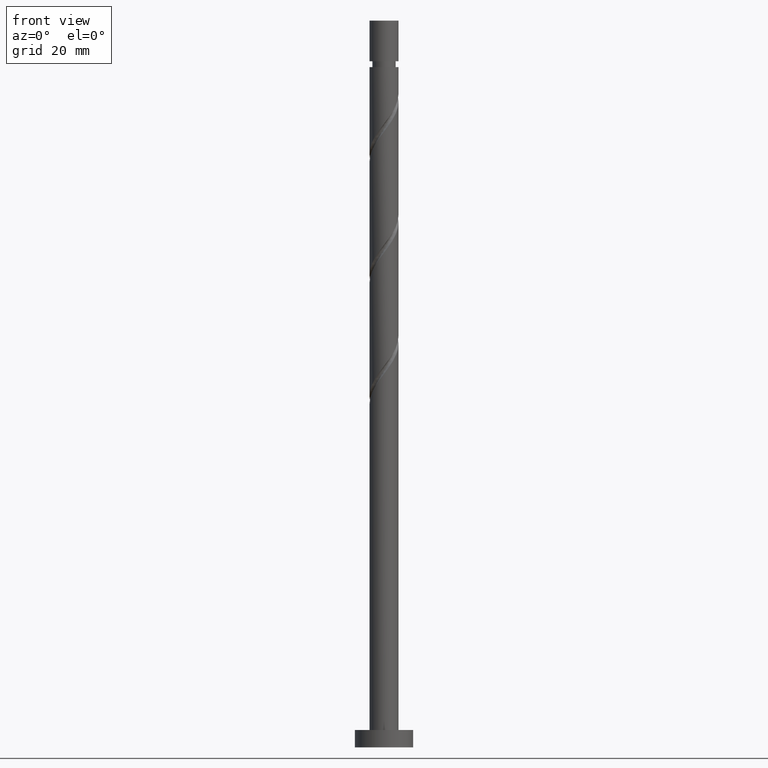
[diagram: clean part render]
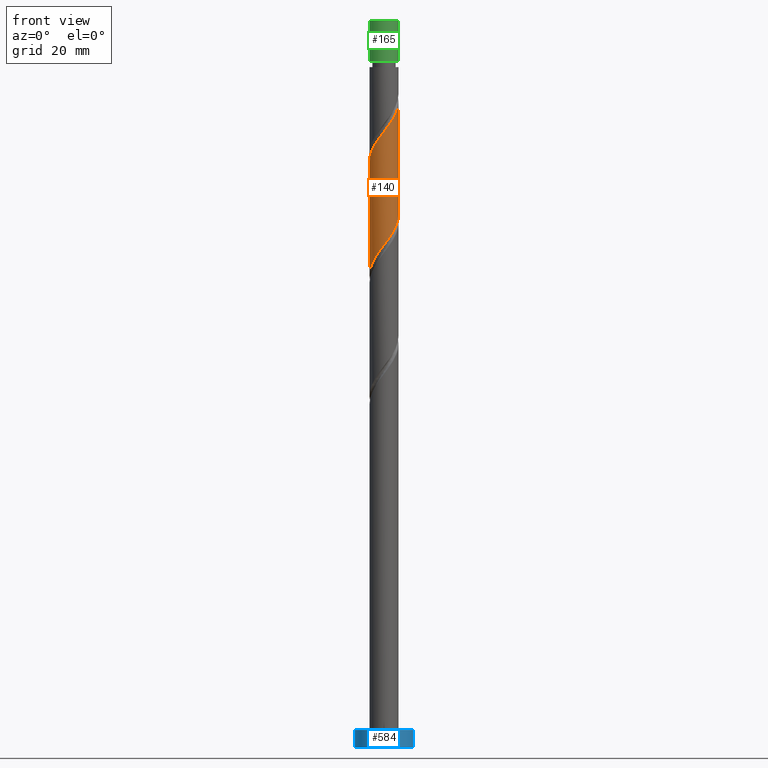
[diagram: same view with three faces highlighted in distinct colors, each labeled with its STEP entity id]
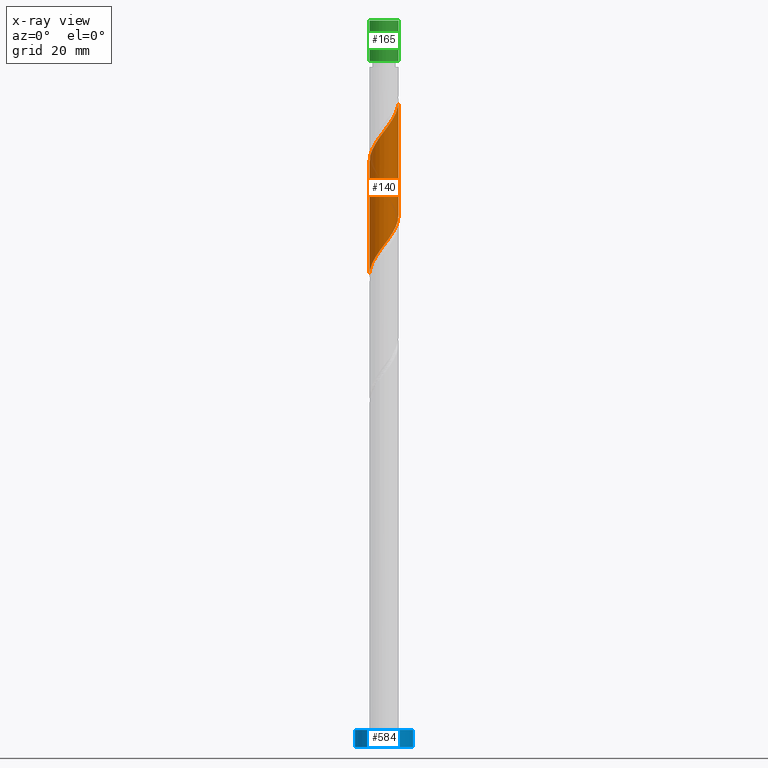
[diagram: x-ray of the same camera — body ghosted, the three highlighted faces saturated]
A machine part, front view with three faces highlighted in distinct colors.
The next image is the same camera in x-ray (body ghosted, the three faces saturated) — at least one of them is partly hidden behind the body in this view.
Their STEP definitions:

[orange] entity #140 — the highlighted cylindrical surface (edge-blend (fillet) strip) has radius 2.5 mm, axis along (-0, -0, -1).
#7 = CARTESIAN_POINT ( 'NONE',  ( 0.8855355973484244636, -2.371204735821965226, 107.1008576505491590 ) ) ;
#14 = CARTESIAN_POINT ( 'NONE',  ( -1.037592995212145874, -2.274511107092401563, 104.4966909838824876 ) ) ;
#101 = CARTESIAN_POINT ( 'NONE',  ( 0.000000000000000000, 0.000000000000000000, 125.0000000000000000 ) ) ;
#105 = CARTESIAN_POINT ( 'NONE',  ( -0.1094518397581966396, -2.528795264178038238, 86.26752431721583037 ) ) ;
#134 = CARTESIAN_POINT ( 'NONE',  ( -2.371204735821965226, -0.8855355973484246856, 101.8925243172158162 ) ) ;
#140 = ADVANCED_FACE ( 'NONE', ( #841 ), #847, .T. ) ;
#141 = CARTESIAN_POINT ( 'NONE',  ( -0.6773458265033743819, -2.438849692923736434, 105.0175243172158446 ) ) ;
#147 = CARTESIAN_POINT ( 'NONE',  ( -2.500000000000000000, 0.000000000000000000, 125.0000000000000000 ) ) ;
#150 = CARTESIAN_POINT ( 'NONE',  ( -2.450000000000002842, -0.4974937185533103712, 101.3716909838824876 ) ) ;
#157 = CARTESIAN_POINT ( 'NONE',  ( 2.274511107092401563, -1.037592995212145874, 109.7050243172158304 ) ) ;
#166 = CARTESIAN_POINT ( 'NONE',  ( 2.500000000000000444, 3.643323976319009630E-15, 91.61982675868610215 ) ) ;
#199 = CARTESIAN_POINT ( 'NONE',  ( -1.230236279064654381, -2.176354451295366754, 84.70502431721587300 ) ) ;
#207 = CARTESIAN_POINT ( 'NONE',  ( -2.500000000000000444, 3.103572276123601059E-15, 81.20316009201944496 ) ) ;
#219 = VERTEX_POINT ( 'NONE', #265 ) ;
#247 = CARTESIAN_POINT ( 'NONE',  ( -2.500000000000003109, -0.2512594538148010814, 101.0411931178200717 ) ) ;
#265 = CARTESIAN_POINT ( 'NONE',  ( -2.500000000000002665, -1.229434428222869666E-15, 100.7068885424122300 ) ) ;
#300 = CARTESIAN_POINT ( 'NONE',  ( -1.574936960780884521, -1.981504166768771835, 84.18419098388251598 ) ) ;
#320 = VERTEX_POINT ( 'NONE', #1275 ) ;
#368 = CARTESIAN_POINT ( 'NONE',  ( 0.4974937185533101491, -2.450000000000002842, 106.5800243172158304 ) ) ;
#376 = CARTESIAN_POINT ( 'NONE',  ( -2.176354451295369419, -1.230236279064655269, 102.4133576505491874 ) ) ;
#391 = CARTESIAN_POINT ( 'NONE',  ( -1.981504166768773390, -1.574936960780885409, 102.9341909838825160 ) ) ;
#397 = LINE ( 'NONE', #147, #1518 ) ;
#418 = EDGE_CURVE ( 'NONE', #320, #550, #871, .T. ) ;
#433 = CARTESIAN_POINT ( 'NONE',  ( -2.483822478550886892, -0.2839469933725882189, 81.58002431721584458 ) ) ;
#449 = CARTESIAN_POINT ( 'NONE',  ( 2.500000000000000000, 3.061616997868382648E-16, 125.0000000000000000 ) ) ;
#465 = CARTESIAN_POINT ( 'NONE',  ( 1.037592995212144320, -2.274511107092399342, 87.83002431721584458 ) ) ;
#491 = EDGE_CURVE ( 'NONE', #1514, #320, #679, .T. ) ;
#496 = CARTESIAN_POINT ( 'NONE',  ( 1.230236279064655269, -2.176354451295369419, 107.6216909838825160 ) ) ;
#504 = CARTESIAN_POINT ( 'NONE',  ( -1.689672165344845434, -1.842554741020975939, 103.4550243172158304 ) ) ;
#526 =( BOUNDED_CURVE ( )  B_SPLINE_CURVE ( 2, ( #874, #247, #150, #134, #376, #391, #504, #1105, #14, #141, #1464, #1338, #368, #7, #496, #1114, #866, #858, #157, #1493, #1097, #1486, #1479 ),
 .UNSPECIFIED., .F., .T. ) 
 B_SPLINE_CURVE_WITH_KNOTS ( ( 3, 2, 2, 2, 2, 2, 2, 2, 2, 2, 2, 3 ),
 ( 0.5545322023138551382, 0.5625000000000000000, 0.5749999999999999556, 0.5875000000000000222, 0.5999999999999999778, 0.6125000000000000444, 0.6250000000000000000, 0.6374999999999999556, 0.6500000000000000222, 0.6624999999999999778, 0.6750000000000000444, 0.6795322023138555823 ),
 .UNSPECIFIED. ) 
 CURVE ( )  GEOMETRIC_REPRESENTATION_ITEM ( )  RATIONAL_B_SPLINE_CURVE ( ( 0.9039174447099396215, 0.9019565955404689195, 0.9090909090909173873, 0.8978984914501335624, 0.9090909090909173873, 0.8978984914501335624, 0.9090909090909173873, 0.8978984914501335624, 0.9090909090909173873, 0.8978984914501335624, 0.9090909090909173873, 0.8978984914501335624, 0.9090909090909173873, 0.8978984914501335624, 0.9090909090909173873, 0.8978984914501335624, 0.9090909090909173873, 0.8978984914501335624, 0.9090909090909173873, 0.8978984914501335624, 0.9090909090909173873, 0.9050328050005814751, 0.9039174447099395104 ) ) 
 REPRESENTATION_ITEM ( '' )  );
#528 = CARTESIAN_POINT ( 'NONE',  ( 2.371204735821961673, -0.8855355973484245746, 90.43419098388251598 ) ) ;
#537 = CARTESIAN_POINT ( 'NONE',  ( 1.397840163920915035, -2.110172521261064915, 88.35085765054918738 ) ) ;
#550 = VERTEX_POINT ( 'NONE', #207 ) ;
#557 = EDGE_LOOP ( 'NONE', ( #1491, #1382, #1260, #1539 ) ) ;
#585 = CARTESIAN_POINT ( 'NONE',  ( 0.6773458265033729386, -2.438849692923733770, 87.30919098388250177 ) ) ;
#600 = AXIS2_PLACEMENT_3D ( 'NONE', #101, #1334, #942 ) ;
#652 = CARTESIAN_POINT ( 'NONE',  ( 2.500000000000000888, -0.2512594538148015810, 91.28552218327823198 ) ) ;
#663 = CARTESIAN_POINT ( 'NONE',  ( -2.499999999999999112, -0.1424343436160874776, 81.39267118122673139 ) ) ;
#679 = LINE ( 'NONE', #449, #1029 ) ;
#686 = CARTESIAN_POINT ( 'NONE',  ( -2.500000000000000444, 3.103572276123601059E-15, 81.20316009201944496 ) ) ;
#820 = CARTESIAN_POINT ( 'NONE',  ( -2.110172521261064915, -1.397840163920915035, 83.14252431721584458 ) ) ;
#825 = EDGE_CURVE ( 'NONE', #219, #1514, #526, .T. ) ;
#841 = FACE_OUTER_BOUND ( 'NONE', #557, .T. ) ;
#847 = CYLINDRICAL_SURFACE ( 'NONE', #600, 2.500000000000000000 ) ;
#858 = CARTESIAN_POINT ( 'NONE',  ( 2.110172521261065803, -1.397840163920917478, 109.1841909838824876 ) ) ;
#866 = CARTESIAN_POINT ( 'NONE',  ( 1.842554741020975939, -1.689672165344845434, 108.6633576505491590 ) ) ;
#871 =( BOUNDED_CURVE ( )  B_SPLINE_CURVE ( 2, ( #166, #652, #1138, #528, #1501, #900, #1146, #537, #465, #585, #954, #105, #1561, #1073, #199, #300, #1526, #820, #1298, #912, #433, #663, #686 ),
 .UNSPECIFIED., .F., .T. ) 
 B_SPLINE_CURVE_WITH_KNOTS ( ( 3, 2, 2, 2, 2, 2, 2, 2, 2, 2, 2, 3 ),
 ( 0.5545322023138551382, 0.5625000000000000000, 0.5749999999999999556, 0.5875000000000000222, 0.5999999999999999778, 0.6125000000000000444, 0.6250000000000000000, 0.6374999999999999556, 0.6500000000000000222, 0.6624999999999999778, 0.6750000000000000444, 0.6795322023138550271 ),
 .UNSPECIFIED. ) 
 CURVE ( )  GEOMETRIC_REPRESENTATION_ITEM ( )  RATIONAL_B_SPLINE_CURVE ( ( 0.9039174447099351806, 0.9019565955404644786, 0.9090909090909129464, 0.8978984914501291215, 0.9090909090909129464, 0.8978984914501291215, 0.9090909090909129464, 0.8978984914501291215, 0.9090909090909129464, 0.8978984914501291215, 0.9090909090909129464, 0.8978984914501291215, 0.9090909090909129464, 0.8978984914501291215, 0.9090909090909129464, 0.8978984914501291215, 0.9090909090909129464, 0.8978984914501291215, 0.9090909090909129464, 0.8978984914501291215, 0.9090909090909129464, 0.9050328050005775893, 0.9039174447099354026 ) ) 
 REPRESENTATION_ITEM ( '' )  );
#874 = CARTESIAN_POINT ( 'NONE',  ( -2.500000000000003109, -1.229434428222869666E-15, 100.7068885424122300 ) ) ;
#900 = CARTESIAN_POINT ( 'NONE',  ( 1.981504166768771835, -1.574936960780884521, 89.39252431721583037 ) ) ;
#912 = CARTESIAN_POINT ( 'NONE',  ( -2.438849692923733770, -0.6773458265033730497, 82.10085765054917317 ) ) ;
#942 = DIRECTION ( 'NONE',  ( -1.000000000000000000, 0.000000000000000000, 0.000000000000000000 ) ) ;
#954 = CARTESIAN_POINT ( 'NONE',  ( 0.2839469933725881079, -2.483822478550886892, 86.78835765054918738 ) ) ;
#988 = DIRECTION ( 'NONE',  ( -0.000000000000000000, -0.000000000000000000, -1.000000000000000000 ) ) ;
#1029 = VECTOR ( 'NONE', #1535, 1000.000000000000000 ) ;
#1073 = CARTESIAN_POINT ( 'NONE',  ( -0.8855355973484244636, -2.371204735821961673, 85.22585765054918738 ) ) ;
#1097 = CARTESIAN_POINT ( 'NONE',  ( 2.483822478550889112, -0.2839469933725892181, 110.7466909838825018 ) ) ;
#1105 = CARTESIAN_POINT ( 'NONE',  ( -1.397840163920917034, -2.110172521261065803, 103.9758576505491590 ) ) ;
#1114 = CARTESIAN_POINT ( 'NONE',  ( 1.574936960780884743, -1.981504166768773390, 108.1425243172158304 ) ) ;
#1138 = CARTESIAN_POINT ( 'NONE',  ( 2.450000000000001066, -0.4974937185533107042, 90.95502431721584458 ) ) ;
#1146 = CARTESIAN_POINT ( 'NONE',  ( 1.689672165344843435, -1.842554741020975051, 88.87169098388253019 ) ) ;
#1260 = ORIENTED_EDGE ( 'NONE', *, *, #1556, .T. ) ;
#1275 = CARTESIAN_POINT ( 'NONE',  ( 2.500000000000000444, 3.643323976319009630E-15, 91.61982675868610215 ) ) ;
#1298 = CARTESIAN_POINT ( 'NONE',  ( -2.274511107092399342, -1.037592995212144320, 82.62169098388250177 ) ) ;
#1334 = DIRECTION ( 'NONE',  ( -0.000000000000000000, -0.000000000000000000, -1.000000000000000000 ) ) ;
#1338 = CARTESIAN_POINT ( 'NONE',  ( 0.1094518397581957375, -2.528795264178041347, 106.0591909838824733 ) ) ;
#1373 = CARTESIAN_POINT ( 'NONE',  ( 2.500000000000002665, 9.145792697755492489E-16, 111.1235552090789298 ) ) ;
#1382 = ORIENTED_EDGE ( 'NONE', *, *, #825, .F. ) ;
#1464 = CARTESIAN_POINT ( 'NONE',  ( -0.2839469933725891626, -2.483822478550889112, 105.5383576505491590 ) ) ;
#1479 = CARTESIAN_POINT ( 'NONE',  ( 2.500000000000002665, 9.145792697755492489E-16, 111.1235552090789156 ) ) ;
#1486 = CARTESIAN_POINT ( 'NONE',  ( 2.500000000000004885, -0.1424343436160710186, 110.9340441198716434 ) ) ;
#1491 = ORIENTED_EDGE ( 'NONE', *, *, #491, .F. ) ;
#1493 = CARTESIAN_POINT ( 'NONE',  ( 2.438849692923736434, -0.6773458265033743819, 110.2258576505491732 ) ) ;
#1501 = CARTESIAN_POINT ( 'NONE',  ( 2.176354451295366754, -1.230236279064654825, 89.91335765054920159 ) ) ;
#1514 = VERTEX_POINT ( 'NONE', #1373 ) ;
#1518 = VECTOR ( 'NONE', #988, 1000.000000000000000 ) ;
#1526 = CARTESIAN_POINT ( 'NONE',  ( -1.842554741020975051, -1.689672165344843435, 83.66335765054918738 ) ) ;
#1535 = DIRECTION ( 'NONE',  ( -0.000000000000000000, -0.000000000000000000, -1.000000000000000000 ) ) ;
#1539 = ORIENTED_EDGE ( 'NONE', *, *, #418, .F. ) ;
#1556 = EDGE_CURVE ( 'NONE', #219, #550, #397, .T. ) ;
#1561 = CARTESIAN_POINT ( 'NONE',  ( -0.4974937185533105377, -2.450000000000001066, 85.74669098388250177 ) ) ;

[blue] entity #584 — the highlighted cylindrical surface (edge-blend (fillet) strip) has radius 5 mm, axis along (-0, -0, -1).
#17 = CIRCLE ( 'NONE', #1162, 5.000000000000000000 ) ;
#55 = FACE_OUTER_BOUND ( 'NONE', #1405, .T. ) ;
#63 = DIRECTION ( 'NONE',  ( -1.000000000000000000, 0.000000000000000000, 0.000000000000000000 ) ) ;
#68 = ORIENTED_EDGE ( 'NONE', *, *, #334, .F. ) ;
#74 = EDGE_CURVE ( 'NONE', #1295, #1245, #211, .T. ) ;
#108 = DIRECTION ( 'NONE',  ( -0.000000000000000000, -0.000000000000000000, -1.000000000000000000 ) ) ;
#181 = DIRECTION ( 'NONE',  ( -0.000000000000000000, -0.000000000000000000, -1.000000000000000000 ) ) ;
#211 = LINE ( 'NONE', #572, #932 ) ;
#334 = EDGE_CURVE ( 'NONE', #1484, #517, #1065, .T. ) ;
#382 = ORIENTED_EDGE ( 'NONE', *, *, #74, .T. ) ;
#402 = CARTESIAN_POINT ( 'NONE',  ( 5.000000000000000000, 6.123233995736766282E-16, 3.000000000000000000 ) ) ;
#415 = CARTESIAN_POINT ( 'NONE',  ( 0.000000000000000000, 0.000000000000000000, 3.000000000000000000 ) ) ;
#419 = VECTOR ( 'NONE', #830, 1000.000000000000000 ) ;
#517 = VERTEX_POINT ( 'NONE', #921 ) ;
#520 = EDGE_CURVE ( 'NONE', #1245, #517, #701, .T. ) ;
#572 = CARTESIAN_POINT ( 'NONE',  ( -5.000000000000000000, 0.000000000000000000, 3.000000000000000000 ) ) ;
#584 = ADVANCED_FACE ( 'NONE', ( #55 ), #1507, .T. ) ;
#645 = DIRECTION ( 'NONE',  ( 1.000000000000000000, 0.000000000000000000, 0.000000000000000000 ) ) ;
#701 = CIRCLE ( 'NONE', #1319, 5.000000000000000000 ) ;
#830 = DIRECTION ( 'NONE',  ( -0.000000000000000000, -0.000000000000000000, -1.000000000000000000 ) ) ;
#854 = CARTESIAN_POINT ( 'NONE',  ( -5.000000000000000000, 0.000000000000000000, 0.000000000000000000 ) ) ;
#862 = CARTESIAN_POINT ( 'NONE',  ( -5.000000000000000000, 0.000000000000000000, 3.000000000000000000 ) ) ;
#921 = CARTESIAN_POINT ( 'NONE',  ( 5.000000000000000000, 6.123233995736766282E-16, 0.000000000000000000 ) ) ;
#932 = VECTOR ( 'NONE', #108, 1000.000000000000000 ) ;
#935 = ORIENTED_EDGE ( 'NONE', *, *, #1348, .F. ) ;
#1039 = CARTESIAN_POINT ( 'NONE',  ( 0.000000000000000000, 0.000000000000000000, 0.000000000000000000 ) ) ;
#1065 = LINE ( 'NONE', #402, #419 ) ;
#1162 = AXIS2_PLACEMENT_3D ( 'NONE', #1372, #1243, #645 ) ;
#1243 = DIRECTION ( 'NONE',  ( 0.000000000000000000, 0.000000000000000000, 1.000000000000000000 ) ) ;
#1245 = VERTEX_POINT ( 'NONE', #854 ) ;
#1252 = CARTESIAN_POINT ( 'NONE',  ( 5.000000000000000000, 6.123233995736766282E-16, 3.000000000000000000 ) ) ;
#1278 = ORIENTED_EDGE ( 'NONE', *, *, #520, .T. ) ;
#1295 = VERTEX_POINT ( 'NONE', #862 ) ;
#1306 = DIRECTION ( 'NONE',  ( 0.000000000000000000, 0.000000000000000000, 1.000000000000000000 ) ) ;
#1319 = AXIS2_PLACEMENT_3D ( 'NONE', #1039, #1306, #1400 ) ;
#1348 = EDGE_CURVE ( 'NONE', #1295, #1484, #17, .T. ) ;
#1372 = CARTESIAN_POINT ( 'NONE',  ( 0.000000000000000000, 0.000000000000000000, 3.000000000000000000 ) ) ;
#1400 = DIRECTION ( 'NONE',  ( 1.000000000000000000, 0.000000000000000000, 0.000000000000000000 ) ) ;
#1405 = EDGE_LOOP ( 'NONE', ( #68, #935, #382, #1278 ) ) ;
#1443 = AXIS2_PLACEMENT_3D ( 'NONE', #415, #181, #63 ) ;
#1484 = VERTEX_POINT ( 'NONE', #1252 ) ;
#1507 = CYLINDRICAL_SURFACE ( 'NONE', #1443, 5.000000000000000000 ) ;

[green] entity #165 — the highlighted cylindrical surface (edge-blend (fillet) strip) has radius 2.5 mm, axis along (-0, -0, -1).
#26 = EDGE_CURVE ( 'NONE', #791, #723, #393, .T. ) ;
#93 = DIRECTION ( 'NONE',  ( 1.000000000000000000, 0.000000000000000000, 0.000000000000000000 ) ) ;
#119 = CARTESIAN_POINT ( 'NONE',  ( 2.500000000000000000, 3.061616997868382648E-16, 125.0000000000000000 ) ) ;
#123 = DIRECTION ( 'NONE',  ( -1.000000000000000000, 0.000000000000000000, 0.000000000000000000 ) ) ;
#132 = ORIENTED_EDGE ( 'NONE', *, *, #970, .F. ) ;
#165 = ADVANCED_FACE ( 'NONE', ( #241 ), #1210, .T. ) ;
#188 = DIRECTION ( 'NONE',  ( -1.000000000000000000, 0.000000000000000000, 0.000000000000000000 ) ) ;
#196 = CARTESIAN_POINT ( 'NONE',  ( 2.500000000000000000, 3.061616997868382648E-16, 125.0000000000000000 ) ) ;
#241 = FACE_OUTER_BOUND ( 'NONE', #995, .T. ) ;
#246 = AXIS2_PLACEMENT_3D ( 'NONE', #817, #1060, #123 ) ;
#347 = CIRCLE ( 'NONE', #956, 2.499999999999997780 ) ;
#393 = CIRCLE ( 'NONE', #1233, 2.500000000000000000 ) ;
#413 = ORIENTED_EDGE ( 'NONE', *, *, #26, .F. ) ;
#502 = VERTEX_POINT ( 'NONE', #671 ) ;
#564 = CARTESIAN_POINT ( 'NONE',  ( 0.000000000000000000, 0.000000000000000000, 117.9966909838825018 ) ) ;
#641 = LINE ( 'NONE', #997, #1004 ) ;
#671 = CARTESIAN_POINT ( 'NONE',  ( -2.499999999999997780, 0.000000000000000000, 117.9966909838825018 ) ) ;
#723 = VERTEX_POINT ( 'NONE', #119 ) ;
#769 = LINE ( 'NONE', #196, #1543 ) ;
#783 = EDGE_CURVE ( 'NONE', #791, #502, #641, .T. ) ;
#791 = VERTEX_POINT ( 'NONE', #991 ) ;
#817 = CARTESIAN_POINT ( 'NONE',  ( 0.000000000000000000, 0.000000000000000000, 125.0000000000000000 ) ) ;
#872 = ORIENTED_EDGE ( 'NONE', *, *, #783, .T. ) ;
#920 = EDGE_CURVE ( 'NONE', #723, #1285, #769, .T. ) ;
#956 = AXIS2_PLACEMENT_3D ( 'NONE', #564, #1304, #188 ) ;
#970 = EDGE_CURVE ( 'NONE', #1285, #502, #347, .T. ) ;
#991 = CARTESIAN_POINT ( 'NONE',  ( -2.500000000000000000, 0.000000000000000000, 125.0000000000000000 ) ) ;
#995 = EDGE_LOOP ( 'NONE', ( #1051, #413, #872, #132 ) ) ;
#997 = CARTESIAN_POINT ( 'NONE',  ( -2.500000000000000000, 0.000000000000000000, 125.0000000000000000 ) ) ;
#1004 = VECTOR ( 'NONE', #1247, 1000.000000000000000 ) ;
#1051 = ORIENTED_EDGE ( 'NONE', *, *, #920, .F. ) ;
#1060 = DIRECTION ( 'NONE',  ( -0.000000000000000000, -0.000000000000000000, -1.000000000000000000 ) ) ;
#1100 = CARTESIAN_POINT ( 'NONE',  ( 2.499999999999997780, 3.061616997868381662E-16, 117.9966909838825018 ) ) ;
#1210 = CYLINDRICAL_SURFACE ( 'NONE', #246, 2.500000000000000000 ) ;
#1233 = AXIS2_PLACEMENT_3D ( 'NONE', #1303, #1564, #93 ) ;
#1247 = DIRECTION ( 'NONE',  ( -0.000000000000000000, -0.000000000000000000, -1.000000000000000000 ) ) ;
#1285 = VERTEX_POINT ( 'NONE', #1100 ) ;
#1303 = CARTESIAN_POINT ( 'NONE',  ( 0.000000000000000000, 0.000000000000000000, 125.0000000000000000 ) ) ;
#1304 = DIRECTION ( 'NONE',  ( -0.000000000000000000, -0.000000000000000000, -1.000000000000000000 ) ) ;
#1424 = DIRECTION ( 'NONE',  ( -0.000000000000000000, -0.000000000000000000, -1.000000000000000000 ) ) ;
#1543 = VECTOR ( 'NONE', #1424, 1000.000000000000000 ) ;
#1564 = DIRECTION ( 'NONE',  ( 0.000000000000000000, 0.000000000000000000, 1.000000000000000000 ) ) ;